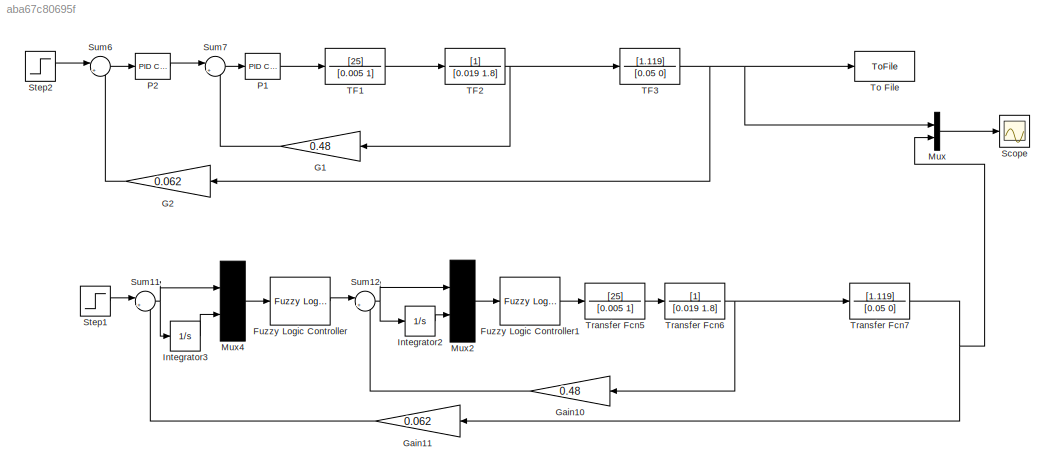
MODEL slx_aba67c80695f
KIND model
CONFIG AbsTol = auto
CONFIG FixedStep = 0.01
CONFIG MaxStep = auto
CONFIG MinStep = auto
CONFIG PreLoadFcn = fuzzy1=readfis('fuz1.fis');\nfuzzy2=readfis('fuz2.fis');
CONFIG RelTol = 1e-3
CONFIG SampleTimeConstraint = Unconstrained
CONFIG Solver = ode3
CONFIG SolverMode = Auto
CONFIG SolverName = ode3
CONFIG StartTime = 0.0
CONFIG StopTime = 10.0
BLOCK [Reference] Fuzzy Logic Controller  REF=fuzblock/Fuzzy Logic   (lib defined in mdl_858b3b3e7478)
Controller
  Ports = [1, 1]
  SourceBlock = fuzblock/Fuzzy Logic \nController
  SourceType = FIS
  fis = fuzzy1
BLOCK [Reference] Fuzzy Logic Controller1  REF=fuzblock/Fuzzy Logic   (lib defined in mdl_858b3b3e7478)
Controller
  Ports = [1, 1]
  SourceBlock = fuzblock/Fuzzy Logic \nController
  SourceType = FIS
  fis = fuzzy2
BLOCK [Gain] G1
  Gain = 0.48
BLOCK [Gain] G2
  Gain = 0.062
BLOCK [Gain] Gain10
  Gain = 0.48
BLOCK [Gain] Gain11
  Gain = 0.062
BLOCK [Integrator] Integrator2
  Ports = [1, 1]
BLOCK [Integrator] Integrator3
  Ports = [1, 1]
BLOCK [Mux] Mux
  DisplayOption = bar
  Inputs = 2
  Ports = [2, 1]
BLOCK [Mux] Mux2
  Inputs = 2
  Ports = [2, 1]
BLOCK [Mux] Mux4
  Inputs = 2
  Ports = [2, 1]
BLOCK [Reference] P1  REF=simulink_need_slupdate/PID Controller
  D = 0
  I = 12.5
  P = 4.7684e-06
  Ports = [1, 1]
  SourceBlock = simulink_need_slupdate/PID Controller
  SourceType = PID Controller
BLOCK [Reference] P2  REF=simulink_need_slupdate/PID Controller
  D = 0
  I = 25
  P = 4.7684e-06
  Ports = [1, 1]
  SourceBlock = simulink_need_slupdate/PID Controller
  SourceType = PID Controller
BLOCK [Scope] Scope
  Floating = off
  NumInputPorts = 1
  Ports = [1]
  TimeRange = 0.007027351338174004
  YMax = 1
  YMin = -1
BLOCK [Step] Step1
  After = 10
  SampleTime = 0
  Time = 0
BLOCK [Step] Step2
  SampleTime = 0
  Time = 0
BLOCK [Sum] Sum11
  IconShape = round
  InputSameDT = off
  Inputs = |+-
  OutDataTypeStr = Inherit: Inherit via internal rule
  Ports = [2, 1]
BLOCK [Sum] Sum12
  IconShape = round
  InputSameDT = off
  Inputs = |+-
  OutDataTypeStr = Inherit: Inherit via internal rule
  Ports = [2, 1]
BLOCK [Sum] Sum6
  IconShape = round
  InputSameDT = off
  Inputs = |+-
  OutDataTypeStr = Inherit: Inherit via internal rule
  Ports = [2, 1]
BLOCK [Sum] Sum7
  IconShape = round
  InputSameDT = off
  Inputs = |+-
  OutDataTypeStr = Inherit: Inherit via internal rule
  Ports = [2, 1]
BLOCK [TransferFcn] TF1
  Denominator = [0.005 1]
  Numerator = [25]
BLOCK [TransferFcn] TF2
  Denominator = [0.019 1.8]
BLOCK [TransferFcn] TF3
  Denominator = [0.05 0]
  Numerator = [1.119]
BLOCK [ToFile] To File
  Filename = fr_model.mat
  MatrixName = fr_model
  Ports = [1]
BLOCK [TransferFcn] Transfer Fcn5
  Denominator = [0.005 1]
  Numerator = [25]
BLOCK [TransferFcn] Transfer Fcn6
  Denominator = [0.019 1.8]
BLOCK [TransferFcn] Transfer Fcn7
  Denominator = [0.05 0]
  Numerator = [1.119]
LINE Fuzzy Logic Controller1:1 -> Transfer Fcn5:1
LINE Fuzzy Logic Controller:1 -> Sum12:1
LINE G1:1 -> Sum7:2
LINE G2:1 -> Sum6:2
LINE Gain10:1 -> Sum12:2
LINE Gain11:1 -> Sum11:2
LINE Integrator2:1 -> Mux2:2
LINE Integrator3:1 -> Mux4:2
LINE Mux2:1 -> Fuzzy Logic Controller1:1
LINE Mux4:1 -> Fuzzy Logic Controller:1
LINE Mux:1 -> Scope:1
LINE P1:1 -> TF1:1
LINE P2:1 -> Sum7:1
LINE Step1:1 -> Sum11:1
LINE Step2:1 -> Sum6:1
NET Sum11:1 -> Integrator3:1, Mux4:1
NET Sum12:1 -> Integrator2:1, Mux2:1
LINE Sum6:1 -> P2:1
LINE Sum7:1 -> P1:1
LINE TF1:1 -> TF2:1
NET TF2:1 -> G1:1, TF3:1
NET TF3:1 -> G2:1, Mux:1, To File:1
LINE Transfer Fcn5:1 -> Transfer Fcn6:1
NET Transfer Fcn6:1 -> Gain10:1, Transfer Fcn7:1
NET Transfer Fcn7:1 -> Gain11:1, Mux:2
note: NET lines group one-source signal fan-out (src -> all destinations, sorted); 1:1 wires keep LINE
